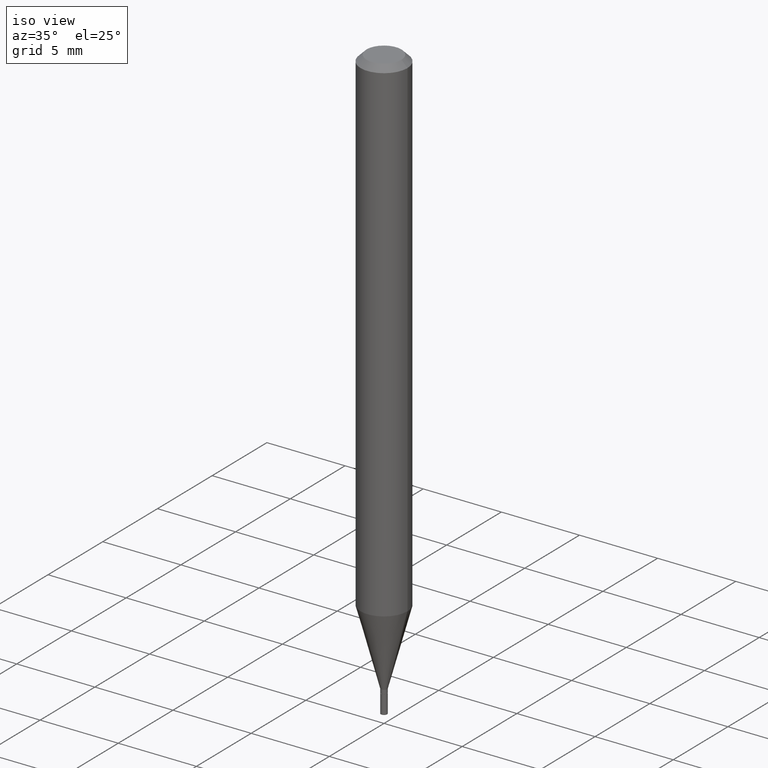
[diagram: clean part render]
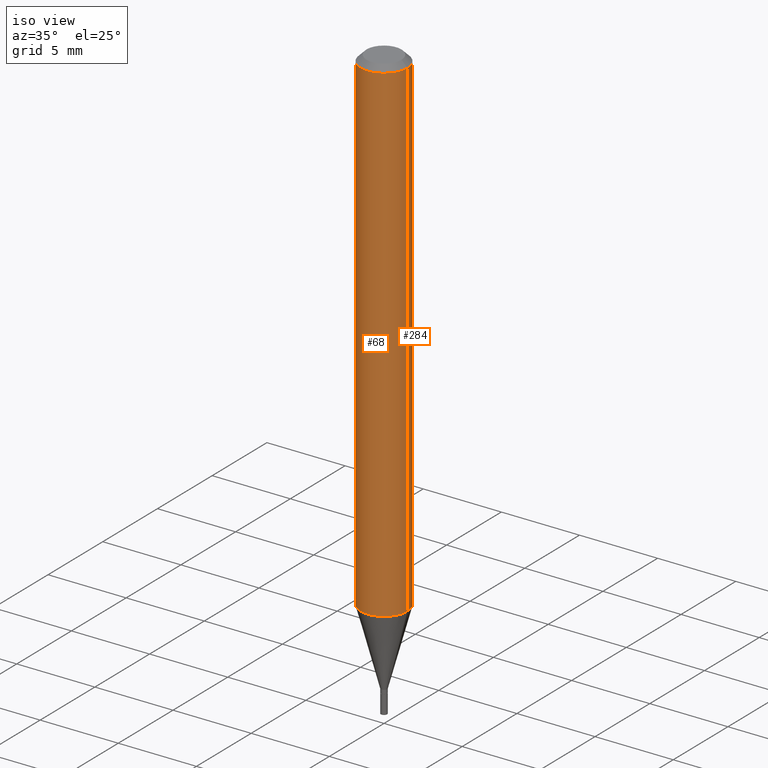
[diagram: same view with one multi-face feature highlighted, each face labeled with its STEP entity id]
A machine part, iso view. The highlighted faces form ONE feature: a constant-radius fillet chain: 2 tangent blend faces with common blend radius 1.4999 mm. The faces share edges in the B-rep.
Their STEP definitions:
[1] entity #284 (Cylinder):
#10 = CYLINDRICAL_SURFACE ( 'NONE', #199, 0.05904999999999999832 ) ;
#46 = DIRECTION ( 'NONE',  ( 1.000000000000000000, -6.982962677686273021E-15, 0.000000000000000000 ) ) ;
#64 = CARTESIAN_POINT ( 'NONE',  ( -0.05904999999999999832, 4.195754854663391478E-16, -2.904631170795521892E-30 ) ) ;
#66 = DIRECTION ( 'NONE',  ( -2.445468806185136597E-29, 3.491481338843145583E-15, 1.000000000000000000 ) ) ;
#71 = CARTESIAN_POINT ( 'NONE',  ( 3.061039765313920249E-29, -4.370353525270541292E-15, -1.251718998652473935 ) ) ;
#75 = ORIENTED_EDGE ( 'NONE', *, *, #169, .T. ) ;
#100 = LINE ( 'NONE', #64, #376 ) ;
#112 = AXIS2_PLACEMENT_3D ( 'NONE', #360, #130, #165 ) ;
#119 = ORIENTED_EDGE ( 'NONE', *, *, #285, .F. ) ;
#122 = VERTEX_POINT ( 'NONE', #452 ) ;
#130 = DIRECTION ( 'NONE',  ( -2.445468806185136597E-29, 3.491481338843145583E-15, 1.000000000000000000 ) ) ;
#142 = VECTOR ( 'NONE', #459, 39.37007874015748143 ) ;
#145 = VERTEX_POINT ( 'NONE', #371 ) ;
#149 = ORIENTED_EDGE ( 'NONE', *, *, #392, .T. ) ;
#156 = CIRCLE ( 'NONE', #432, 0.05904999999999999832 ) ;
#161 = CARTESIAN_POINT ( 'NONE',  ( -0.05904999999999999832, -1.791787387210255284E-15, -0.01499999999999999944 ) ) ;
#165 = DIRECTION ( 'NONE',  ( 1.000000000000000000, -6.982962677686266711E-15, 0.000000000000000000 ) ) ;
#167 = LINE ( 'NONE', #322, #142 ) ;
#169 = EDGE_CURVE ( 'NONE', #186, #145, #156, .T. ) ;
#185 = FACE_OUTER_BOUND ( 'NONE', #343, .T. ) ;
#186 = VERTEX_POINT ( 'NONE', #373 ) ;
#199 = AXIS2_PLACEMENT_3D ( 'NONE', #243, #66, #463 ) ;
#243 = CARTESIAN_POINT ( 'NONE',  ( 0.000000000000000000, 0.000000000000000000, 0.000000000000000000 ) ) ;
#244 = DIRECTION ( 'NONE',  ( -2.445468806185136877E-29, 3.491481338843145188E-15, 1.000000000000000000 ) ) ;
#273 = ORIENTED_EDGE ( 'NONE', *, *, #362, .F. ) ;
#284 = ADVANCED_FACE ( 'NONE', ( #185 ), #10, .T. ) ;
#285 = EDGE_CURVE ( 'NONE', #186, #122, #167, .T. ) ;
#322 = CARTESIAN_POINT ( 'NONE',  ( 0.05904999999999999832, -4.123439461173740327E-16, 2.879382386107500220E-30 ) ) ;
#343 = EDGE_LOOP ( 'NONE', ( #75, #149, #273, #119 ) ) ;
#360 = CARTESIAN_POINT ( 'NONE',  ( 3.668203209277705088E-31, -5.237222008264718399E-17, -0.01499999999999999944 ) ) ;
#362 = EDGE_CURVE ( 'NONE', #122, #384, #458, .T. ) ;
#371 = CARTESIAN_POINT ( 'NONE',  ( -0.05904999999999998445, -3.950778039804202587E-15, -1.251718998652473935 ) ) ;
#373 = CARTESIAN_POINT ( 'NONE',  ( 0.05904999999999998445, -4.782697471387915423E-15, -1.251718998652473935 ) ) ;
#376 = VECTOR ( 'NONE', #244, 39.37007874015748143 ) ;
#384 = VERTEX_POINT ( 'NONE', #161 ) ;
#392 = EDGE_CURVE ( 'NONE', #145, #384, #100, .T. ) ;
#430 = DIRECTION ( 'NONE',  ( -2.445468806185136597E-29, 3.491481338843145583E-15, 1.000000000000000000 ) ) ;
#432 = AXIS2_PLACEMENT_3D ( 'NONE', #71, #430, #46 ) ;
#452 = CARTESIAN_POINT ( 'NONE',  ( 0.05904999999999999832, -4.647161662000212105E-16, -0.01499999999999999944 ) ) ;
#458 = CIRCLE ( 'NONE', #112, 0.05904999999999999832 ) ;
#459 = DIRECTION ( 'NONE',  ( -2.445468806185136877E-29, 3.491481338843145188E-15, 1.000000000000000000 ) ) ;
#463 = DIRECTION ( 'NONE',  ( 1.000000000000000000, -6.982962677686266711E-15, 4.876176775795936353E-29 ) ) ;
[2] entity #68 (Cylinder):
#18 = CARTESIAN_POINT ( 'NONE',  ( 0.000000000000000000, 0.000000000000000000, 0.000000000000000000 ) ) ;
#28 = CIRCLE ( 'NONE', #94, 0.05904999999999999832 ) ;
#32 = CARTESIAN_POINT ( 'NONE',  ( 3.668203209277705088E-31, -5.237222008264718399E-17, -0.01499999999999999944 ) ) ;
#64 = CARTESIAN_POINT ( 'NONE',  ( -0.05904999999999999832, 4.195754854663391478E-16, -2.904631170795521892E-30 ) ) ;
#68 = ADVANCED_FACE ( 'NONE', ( #227 ), #325, .T. ) ;
#76 = ORIENTED_EDGE ( 'NONE', *, *, #285, .T. ) ;
#94 = AXIS2_PLACEMENT_3D ( 'NONE', #32, #464, #141 ) ;
#100 = LINE ( 'NONE', #64, #376 ) ;
#122 = VERTEX_POINT ( 'NONE', #452 ) ;
#126 = ORIENTED_EDGE ( 'NONE', *, *, #290, .T. ) ;
#136 = CARTESIAN_POINT ( 'NONE',  ( 3.061039765313920249E-29, -4.370353525270541292E-15, -1.251718998652473935 ) ) ;
#141 = DIRECTION ( 'NONE',  ( 1.000000000000000000, -6.982962677686266711E-15, 0.000000000000000000 ) ) ;
#142 = VECTOR ( 'NONE', #459, 39.37007874015748143 ) ;
#145 = VERTEX_POINT ( 'NONE', #371 ) ;
#155 = DIRECTION ( 'NONE',  ( -2.445468806185136597E-29, 3.491481338843145583E-15, 1.000000000000000000 ) ) ;
#161 = CARTESIAN_POINT ( 'NONE',  ( -0.05904999999999999832, -1.791787387210255284E-15, -0.01499999999999999944 ) ) ;
#167 = LINE ( 'NONE', #322, #142 ) ;
#186 = VERTEX_POINT ( 'NONE', #373 ) ;
#227 = FACE_OUTER_BOUND ( 'NONE', #249, .T. ) ;
#238 = ORIENTED_EDGE ( 'NONE', *, *, #368, .F. ) ;
#244 = DIRECTION ( 'NONE',  ( -2.445468806185136877E-29, 3.491481338843145188E-15, 1.000000000000000000 ) ) ;
#249 = EDGE_LOOP ( 'NONE', ( #293, #126, #76, #238 ) ) ;
#280 = DIRECTION ( 'NONE',  ( -2.445468806185136597E-29, 3.491481338843145583E-15, 1.000000000000000000 ) ) ;
#285 = EDGE_CURVE ( 'NONE', #186, #122, #167, .T. ) ;
#290 = EDGE_CURVE ( 'NONE', #145, #186, #385, .T. ) ;
#293 = ORIENTED_EDGE ( 'NONE', *, *, #392, .F. ) ;
#308 = DIRECTION ( 'NONE',  ( 1.000000000000000000, -6.982962677686266711E-15, 4.876176775795936353E-29 ) ) ;
#322 = CARTESIAN_POINT ( 'NONE',  ( 0.05904999999999999832, -4.123439461173740327E-16, 2.879382386107500220E-30 ) ) ;
#325 = CYLINDRICAL_SURFACE ( 'NONE', #369, 0.05904999999999999832 ) ;
#368 = EDGE_CURVE ( 'NONE', #384, #122, #28, .T. ) ;
#369 = AXIS2_PLACEMENT_3D ( 'NONE', #18, #155, #308 ) ;
#371 = CARTESIAN_POINT ( 'NONE',  ( -0.05904999999999998445, -3.950778039804202587E-15, -1.251718998652473935 ) ) ;
#373 = CARTESIAN_POINT ( 'NONE',  ( 0.05904999999999998445, -4.782697471387915423E-15, -1.251718998652473935 ) ) ;
#376 = VECTOR ( 'NONE', #244, 39.37007874015748143 ) ;
#384 = VERTEX_POINT ( 'NONE', #161 ) ;
#385 = CIRCLE ( 'NONE', #401, 0.05904999999999999832 ) ;
#392 = EDGE_CURVE ( 'NONE', #145, #384, #100, .T. ) ;
#401 = AXIS2_PLACEMENT_3D ( 'NONE', #136, #280, #426 ) ;
#426 = DIRECTION ( 'NONE',  ( 1.000000000000000000, -6.982962677686273021E-15, 0.000000000000000000 ) ) ;
#452 = CARTESIAN_POINT ( 'NONE',  ( 0.05904999999999999832, -4.647161662000212105E-16, -0.01499999999999999944 ) ) ;
#459 = DIRECTION ( 'NONE',  ( -2.445468806185136877E-29, 3.491481338843145188E-15, 1.000000000000000000 ) ) ;
#464 = DIRECTION ( 'NONE',  ( -2.445468806185136597E-29, 3.491481338843145583E-15, 1.000000000000000000 ) ) ;